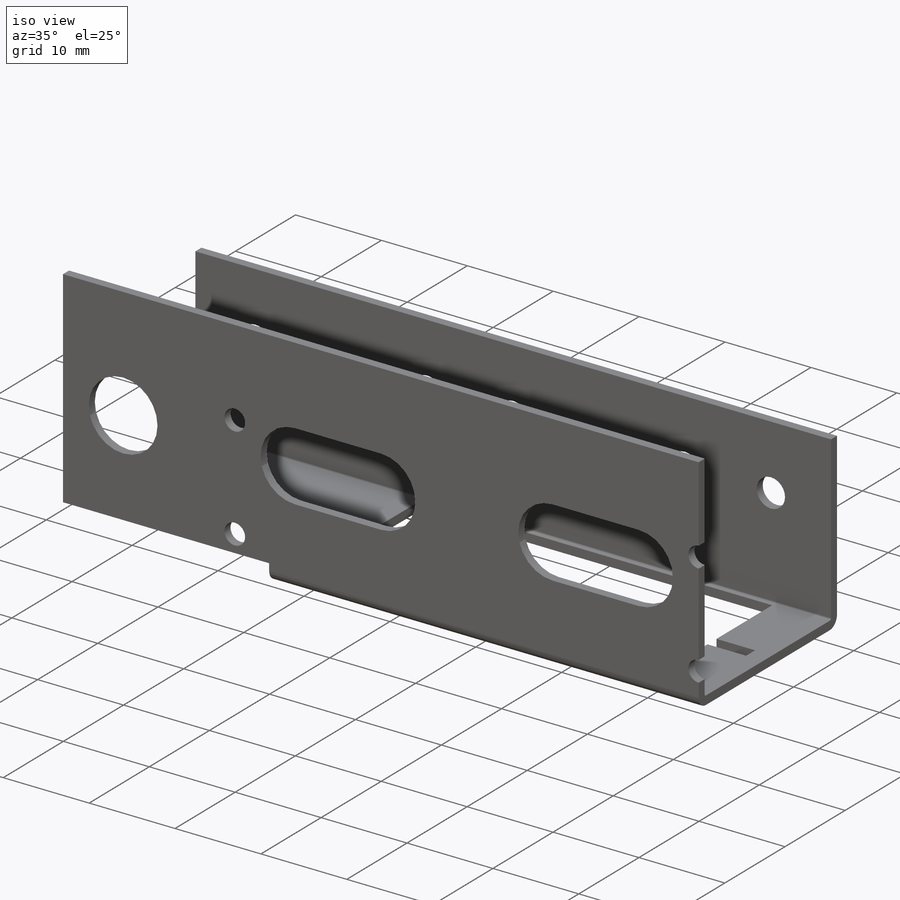
[diagram: iso view]
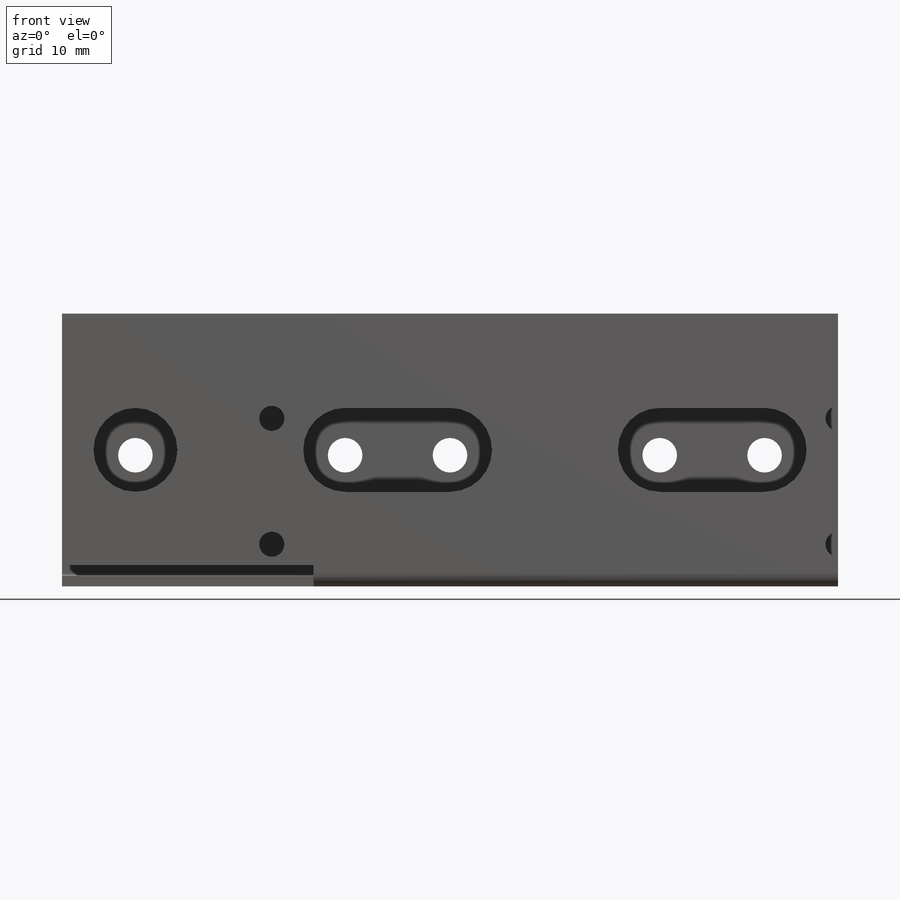
[diagram: front view]
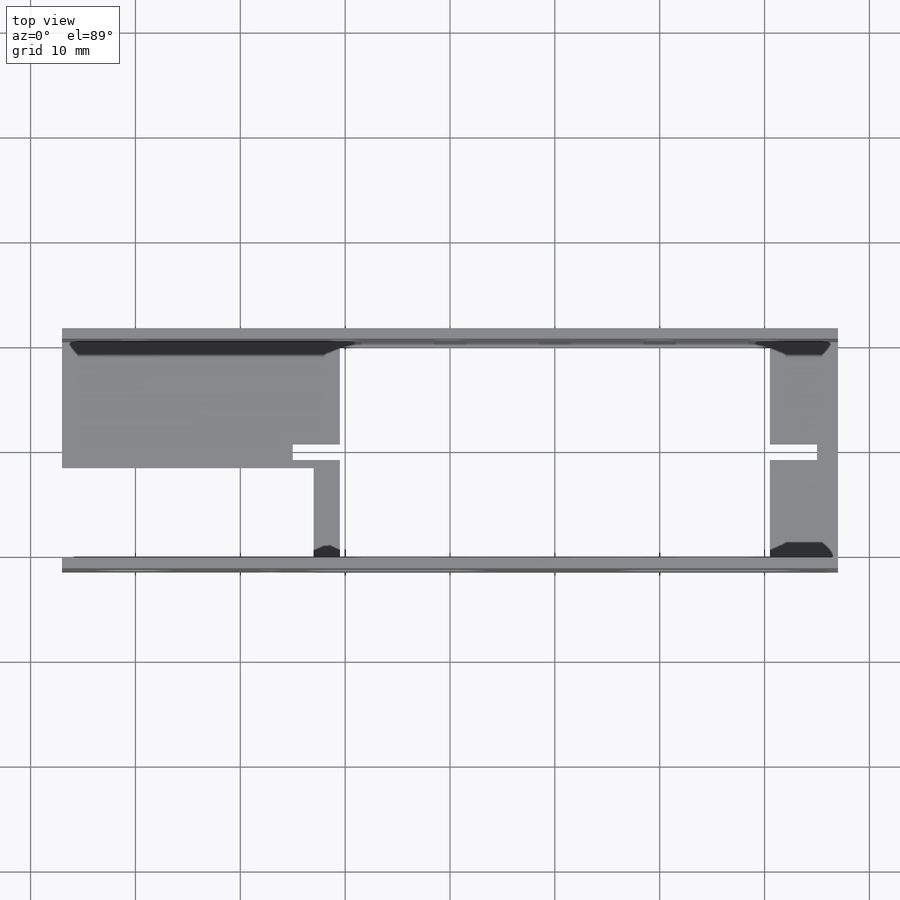
[diagram: top view]
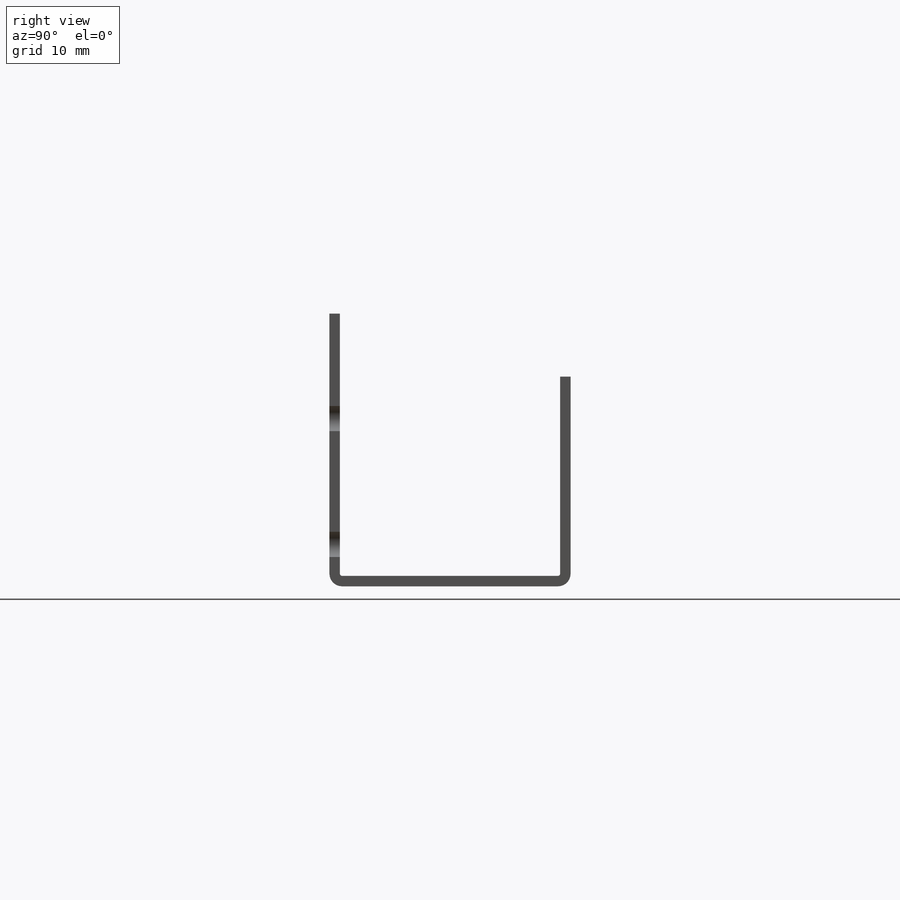
[diagram: right view]
SOLIDWORKS PART (.sldprt)
format: sldprt  version: not decoded by parser v0  size: 349,696 bytes
history: native  units: mm
features: plane x6, sketch x5, cut_extrude x5, material x1, move_body x1 + 4 further entries (+14 scaffold rows collapsed; 3 parser-record rows omitted)
feature tree (39):
  scaffold x14  (default folders/planes/origin — collapsed)
  material  "Unlegierter Baustahl"
  plane  "Ebene vorne"
  plane  "Ebene oben"
  plane  "Ebene rechts"
  plane  "Ebene vorne-Festplattenblech"
  plane  "Ebene oben-Festplattenblech"
  plane  "Ebene rechts-Festplattenblech"
  "Festplattenblech"
  parser-record x3  (decoder bookkeeping rows leaked as tree rows — omitted from the tree; the rows remain in map.json)
  move_body  "Körper-Verschieben/Kopieren2"
  "Deckungsgleich1"
  "Deckungsgleich2"
  "Deckungsgleich3"
  sketch  "Skizze1"  dims[D1=41.0mm D2=20.0mm]
  cut_extrude  "Schnitt-Linear austragen1"  [1 undecoded]
  sketch  "Skizze2"  dims[D1=1.5mm D2=50.0mm]
  cut_extrude  "Schnitt-Linear austragen2"  [1 undecoded]
  sketch  "Skizze3"  dims[c1.D1=40.0mm c1.D2=27.0mm c2.D1=74.0mm]
  cut_extrude  "Schnitt-Linear austragen3"  [1 undecoded]
  sketch  "Skizze4"
  cut_extrude  "Schnitt-Linear austragen4"  Depth=20mm
  sketch  "Skizze9"  dims[D1=24.0mm D2=10.0mm]
  cut_extrude  "Schnitt-Linear austragen5"  Depth=2mm
decode coverage: 6 of 11 modeling features carry decoded parameters; 4 rows unclassified (native names shown)
note: 3 parameter values undecoded
summary: no parameter record found for 3 features
note: suppression state not decoded; provenance and decode notes live in map.json
